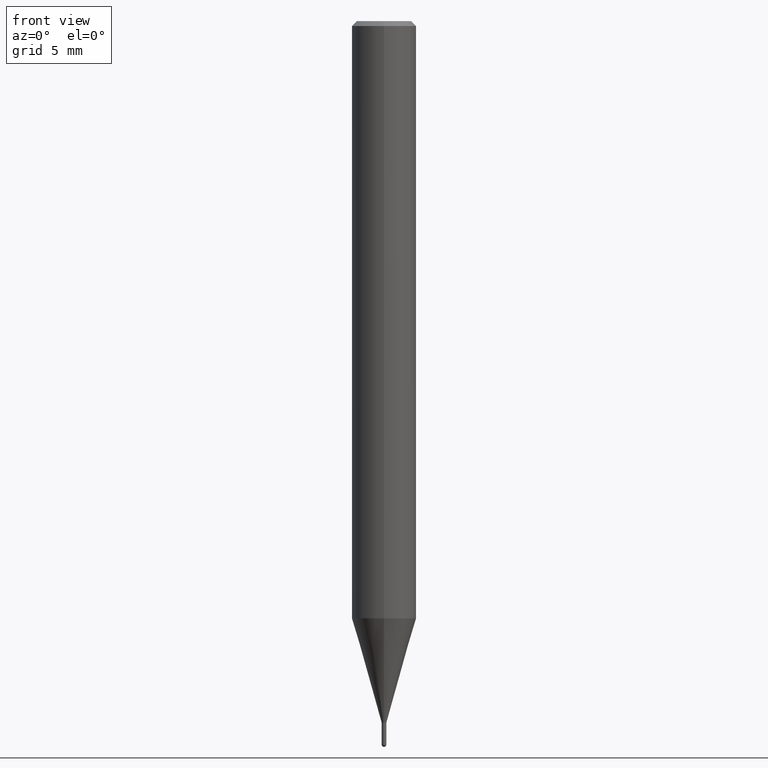
[diagram: clean part render]
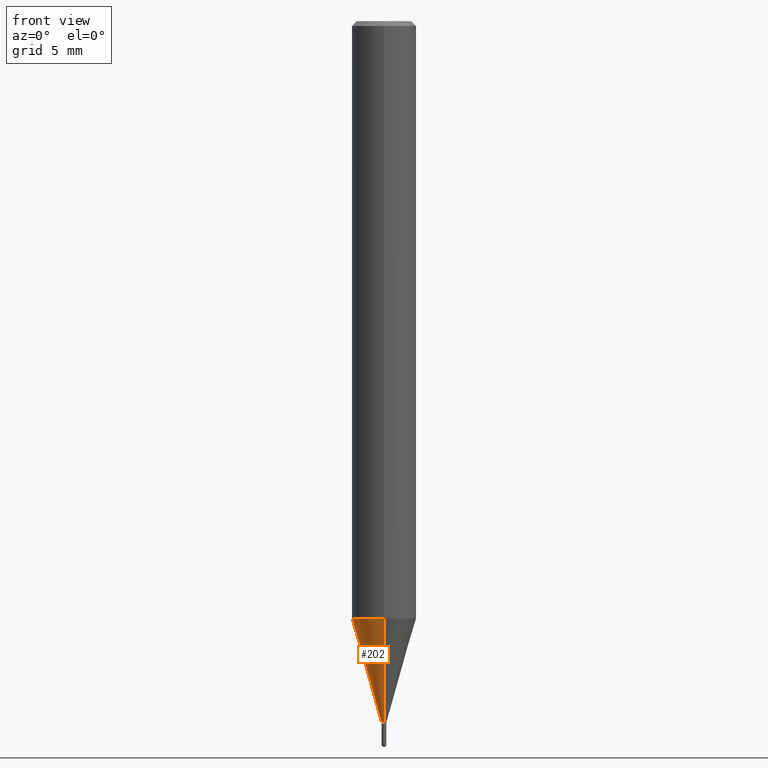
[diagram: same view with one face highlighted and labeled with its STEP entity id]
A machine part, front view. The second image highlights one B-rep face of the part: STEP entity #202.
In plain terms, the highlighted conical surface has half-angle 16 deg.
Its self-contained STEP definition (entity closure, byte-faithful):
#126=EDGE_CURVE('',#196,#208,#271,.T.);
#134=EDGE_CURVE('',#208,#154,#279,.T.);
#154=VERTEX_POINT('',#304);
#186=VERTEX_POINT('',#339);
#194=EDGE_CURVE('',#196,#186,#348,.T.);
#196=VERTEX_POINT('',#350);
#202=ADVANCED_FACE('',(#358),#359,.T.);
#204=EDGE_CURVE('',#154,#186,#361,.T.);
#208=VERTEX_POINT('',#365);
#271=LINE('',#435,#436);
#279=CIRCLE('',#449,1.99995);
#304=CARTESIAN_POINT('',(0.0,1.99995,-37.031));
#339=CARTESIAN_POINT('',(0.0,0.14495,-43.5));
#348=CIRCLE('',#531,0.14495);
#350=CARTESIAN_POINT('',(1.77506690986553E-017,-0.14495,-43.5));
#358=FACE_OUTER_BOUND('',#541,.T.);
#359=CONICAL_SURFACE('',#542,1.07245,0.279258979430111);
#361=LINE('',#545,#546);
#365=CARTESIAN_POINT('',(2.44915147732706E-016,-1.99995,-37.031));
#435=CARTESIAN_POINT('',(1.31332908415681E-016,-1.07245,-40.2655));
#436=VECTOR('',#606,1.0);
#449=AXIS2_PLACEMENT_3D('',#609,#610,#611);
#531=AXIS2_PLACEMENT_3D('',#704,#705,#706);
#541=EDGE_LOOP('',(#720,#721,#722,#723));
#542=AXIS2_PLACEMENT_3D('',#724,#725,#726);
#545=CARTESIAN_POINT('',(-1.31332908415681E-016,1.07245,-40.2655));
#546=VECTOR('',#727,1.0);
#606=DIRECTION('',(3.37554672384358E-017,-0.275643410905672,0.961259959648943));
#609=CARTESIAN_POINT('',(0.0,0.0,-37.031));
#610=DIRECTION('',(0.0,0.0,-1.0));
#611=DIRECTION('',(0.0,1.0,0.0));
#704=CARTESIAN_POINT('',(0.0,0.0,-43.5));
#705=DIRECTION('',(0.0,0.0,-1.0));
#706=DIRECTION('',(0.0,1.0,0.0));
#720=ORIENTED_EDGE('',*,*,#204,.T.);
#721=ORIENTED_EDGE('',*,*,#194,.F.);
#722=ORIENTED_EDGE('',*,*,#126,.T.);
#723=ORIENTED_EDGE('',*,*,#134,.T.);
#724=CARTESIAN_POINT('',(0.0,0.0,-40.2655));
#725=DIRECTION('',(-0.0,-0.0,1.0));
#726=DIRECTION('',(0.0,1.0,0.0));
#727=DIRECTION('',(3.37554672384358E-017,-0.275643410905672,-0.961259959648943));